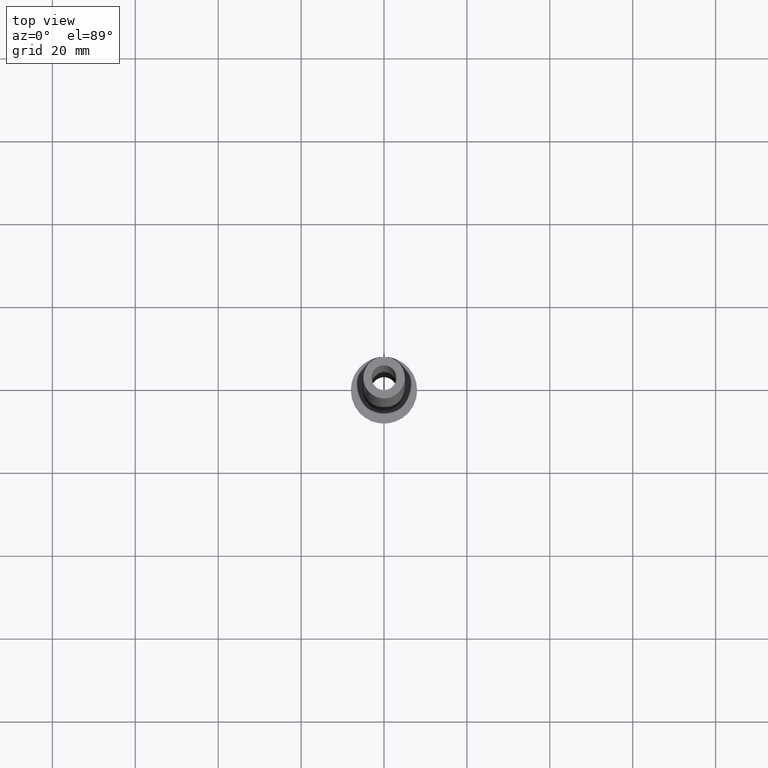
[diagram: clean part render]
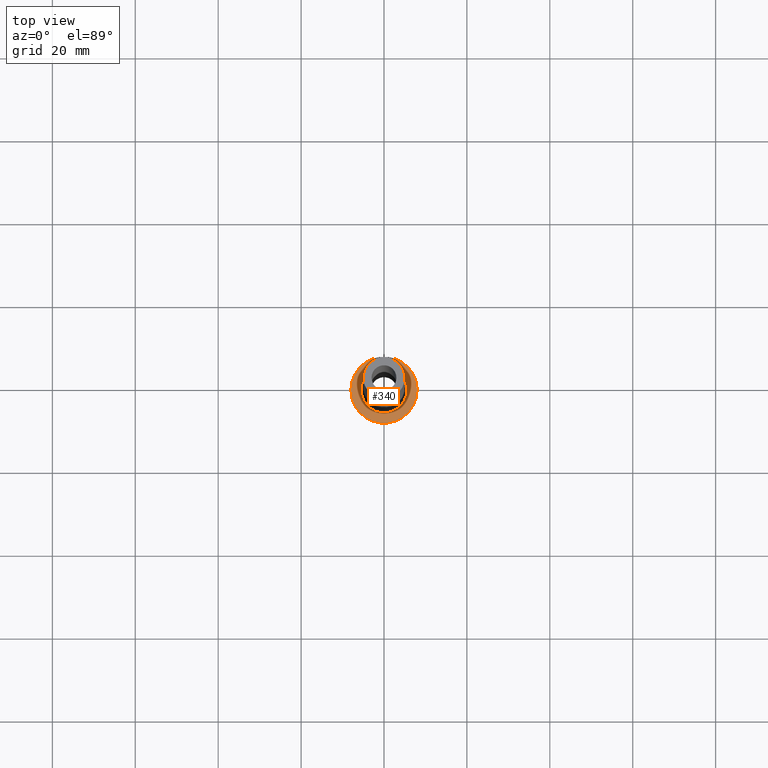
[diagram: same view with one face highlighted and labeled with its STEP entity id]
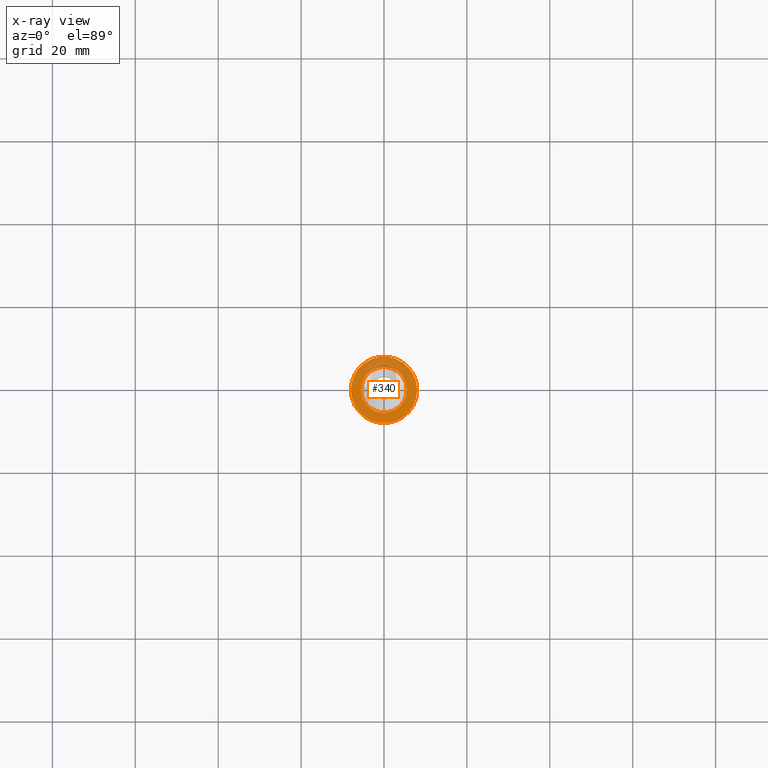
[diagram: x-ray of the same camera — body ghosted, the highlighted face saturated]
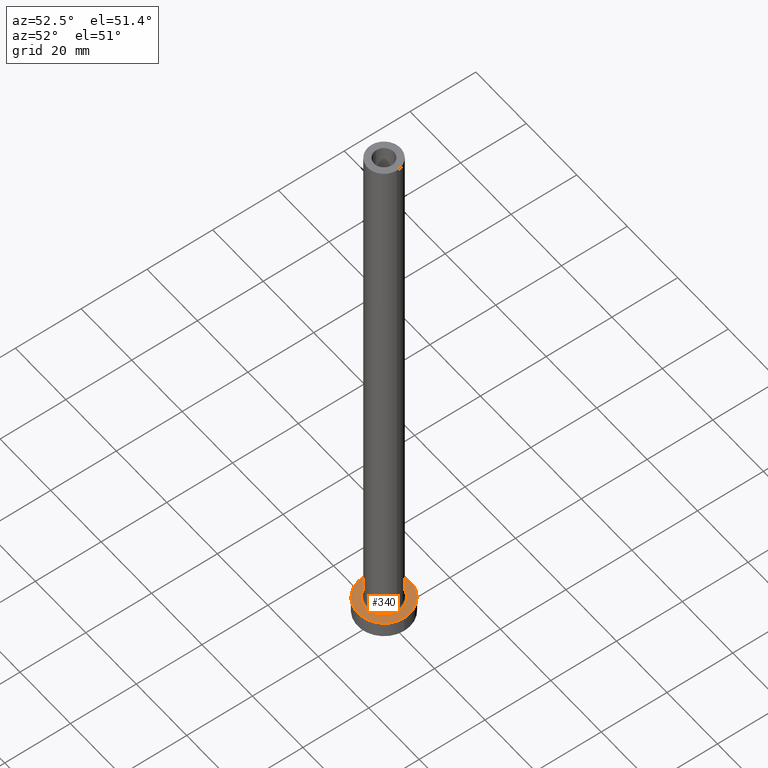
[diagram: same view with one face highlighted and labeled with its STEP entity id]
A machine part, top view. The second image highlights one B-rep face of the part: STEP entity #340.
The next image is the same camera in x-ray: the body ghosted, the highlighted face saturated — about 22% of this face is hidden behind the body in this view.
A second angle (auxiliary view) of the same face is appended — the face is thin or edge-on in the first view.
In plain terms, the highlighted planar face has unit normal (0, 0, 1).
Its self-contained STEP definition (entity closure, byte-faithful):
#8 = CARTESIAN_POINT ( 'NONE',  ( 5.500000000000000000, 0.000000000000000000, 5.000000000000002665 ) ) ;
#32 = VERTEX_POINT ( 'NONE', #267 ) ;
#36 = CARTESIAN_POINT ( 'NONE',  ( 8.000000000000000000, 9.797174393178825657E-16, 5.000000000000000000 ) ) ;
#40 = DIRECTION ( 'NONE',  ( 1.000000000000000000, 0.000000000000000000, 0.000000000000000000 ) ) ;
#53 = DIRECTION ( 'NONE',  ( 0.000000000000000000, 0.000000000000000000, 1.000000000000000000 ) ) ;
#82 = VERTEX_POINT ( 'NONE', #98 ) ;
#92 = CARTESIAN_POINT ( 'NONE',  ( 0.000000000000000000, 0.000000000000000000, 5.000000000000000000 ) ) ;
#98 = CARTESIAN_POINT ( 'NONE',  ( -5.500000000000000000, 6.735557395310442023E-16, 5.000000000000002665 ) ) ;
#139 = EDGE_CURVE ( 'NONE', #154, #82, #229, .T. ) ;
#140 = FACE_OUTER_BOUND ( 'NONE', #411, .T. ) ;
#154 = VERTEX_POINT ( 'NONE', #8 ) ;
#182 = AXIS2_PLACEMENT_3D ( 'NONE', #404, #204, #40 ) ;
#185 = EDGE_CURVE ( 'NONE', #32, #228, #193, .T. ) ;
#187 = DIRECTION ( 'NONE',  ( 1.000000000000000000, 0.000000000000000000, 0.000000000000000000 ) ) ;
#193 = CIRCLE ( 'NONE', #454, 8.000000000000000000 ) ;
#204 = DIRECTION ( 'NONE',  ( -0.000000000000000000, -0.000000000000000000, -1.000000000000000000 ) ) ;
#210 = PLANE ( 'NONE',  #345 ) ;
#228 = VERTEX_POINT ( 'NONE', #36 ) ;
#229 = CIRCLE ( 'NONE', #182, 5.500000000000000000 ) ;
#240 = AXIS2_PLACEMENT_3D ( 'NONE', #447, #452, #299 ) ;
#250 = DIRECTION ( 'NONE',  ( 1.000000000000000000, 0.000000000000000000, 0.000000000000000000 ) ) ;
#257 = EDGE_LOOP ( 'NONE', ( #333, #341 ) ) ;
#267 = CARTESIAN_POINT ( 'NONE',  ( -8.000000000000000000, 0.000000000000000000, 5.000000000000000000 ) ) ;
#281 = DIRECTION ( 'NONE',  ( -0.000000000000000000, -0.000000000000000000, -1.000000000000000000 ) ) ;
#282 = CIRCLE ( 'NONE', #240, 8.000000000000000000 ) ;
#297 = EDGE_CURVE ( 'NONE', #228, #32, #282, .T. ) ;
#299 = DIRECTION ( 'NONE',  ( 1.000000000000000000, 0.000000000000000000, 0.000000000000000000 ) ) ;
#310 = EDGE_CURVE ( 'NONE', #82, #154, #332, .T. ) ;
#313 = FACE_BOUND ( 'NONE', #257, .T. ) ;
#330 = ORIENTED_EDGE ( 'NONE', *, *, #297, .T. ) ;
#332 = CIRCLE ( 'NONE', #455, 5.500000000000000000 ) ;
#333 = ORIENTED_EDGE ( 'NONE', *, *, #139, .T. ) ;
#340 = ADVANCED_FACE ( 'NONE', ( #313, #140 ), #210, .T. ) ;
#341 = ORIENTED_EDGE ( 'NONE', *, *, #310, .T. ) ;
#345 = AXIS2_PLACEMENT_3D ( 'NONE', #349, #386, #354 ) ;
#349 = CARTESIAN_POINT ( 'NONE',  ( 0.000000000000000000, 0.000000000000000000, 5.000000000000000000 ) ) ;
#354 = DIRECTION ( 'NONE',  ( 1.000000000000000000, 0.000000000000000000, -0.000000000000000000 ) ) ;
#386 = DIRECTION ( 'NONE',  ( 0.000000000000000000, 0.000000000000000000, 1.000000000000000000 ) ) ;
#404 = CARTESIAN_POINT ( 'NONE',  ( 0.000000000000000000, 0.000000000000000000, 5.000000000000000000 ) ) ;
#411 = EDGE_LOOP ( 'NONE', ( #419, #330 ) ) ;
#419 = ORIENTED_EDGE ( 'NONE', *, *, #185, .T. ) ;
#431 = CARTESIAN_POINT ( 'NONE',  ( 0.000000000000000000, 0.000000000000000000, 5.000000000000000000 ) ) ;
#447 = CARTESIAN_POINT ( 'NONE',  ( 0.000000000000000000, 0.000000000000000000, 5.000000000000000000 ) ) ;
#452 = DIRECTION ( 'NONE',  ( 0.000000000000000000, 0.000000000000000000, 1.000000000000000000 ) ) ;
#454 = AXIS2_PLACEMENT_3D ( 'NONE', #431, #53, #187 ) ;
#455 = AXIS2_PLACEMENT_3D ( 'NONE', #92, #281, #250 ) ;